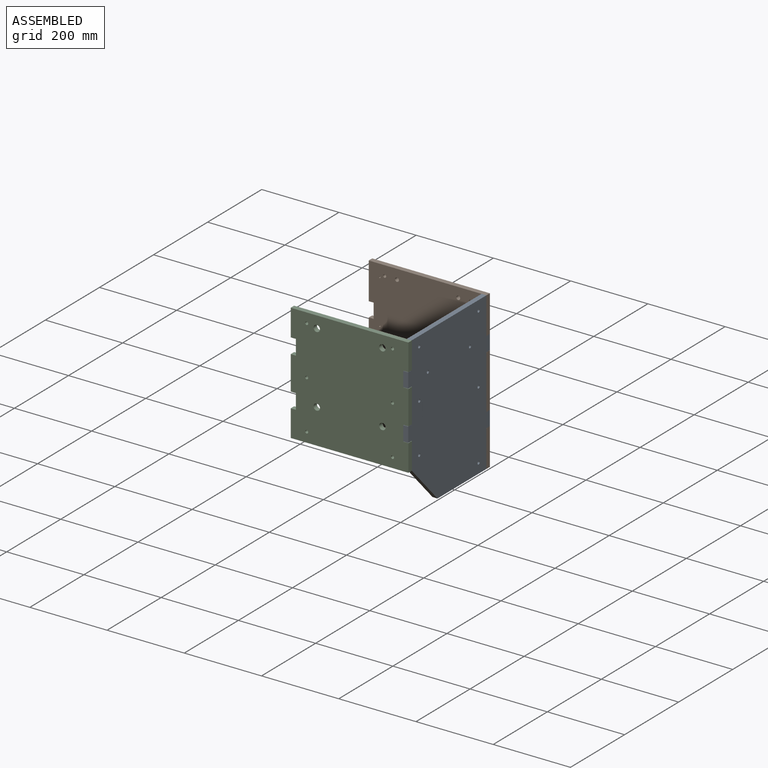
[diagram: assembled view]
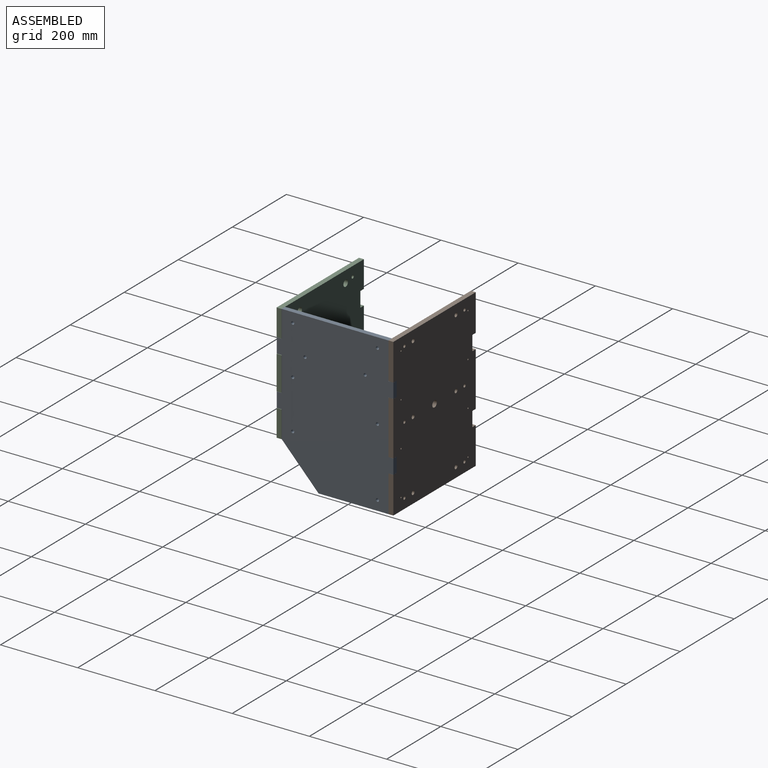
[diagram: assembled view, second angle]
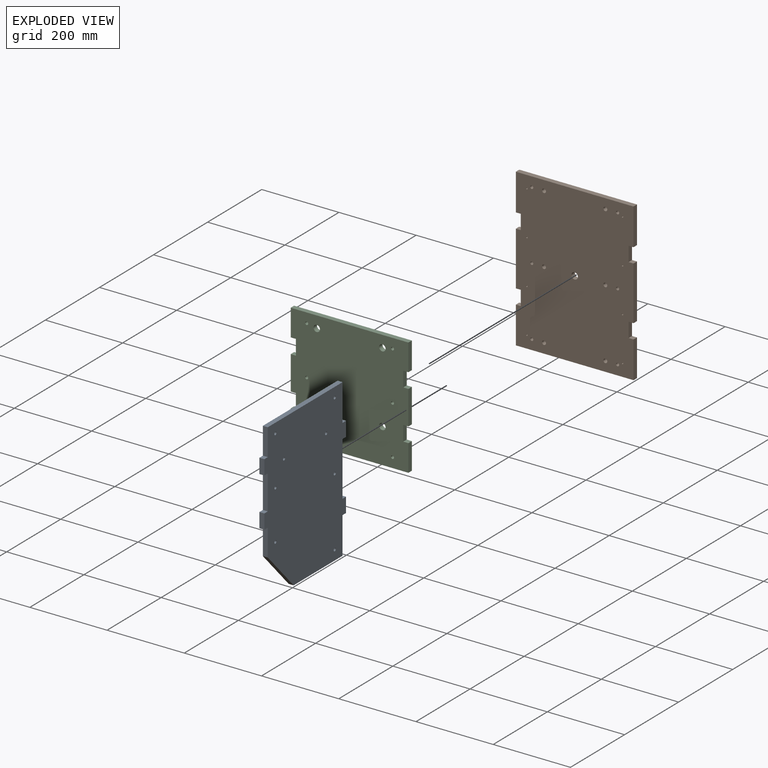
[diagram: exploded view]
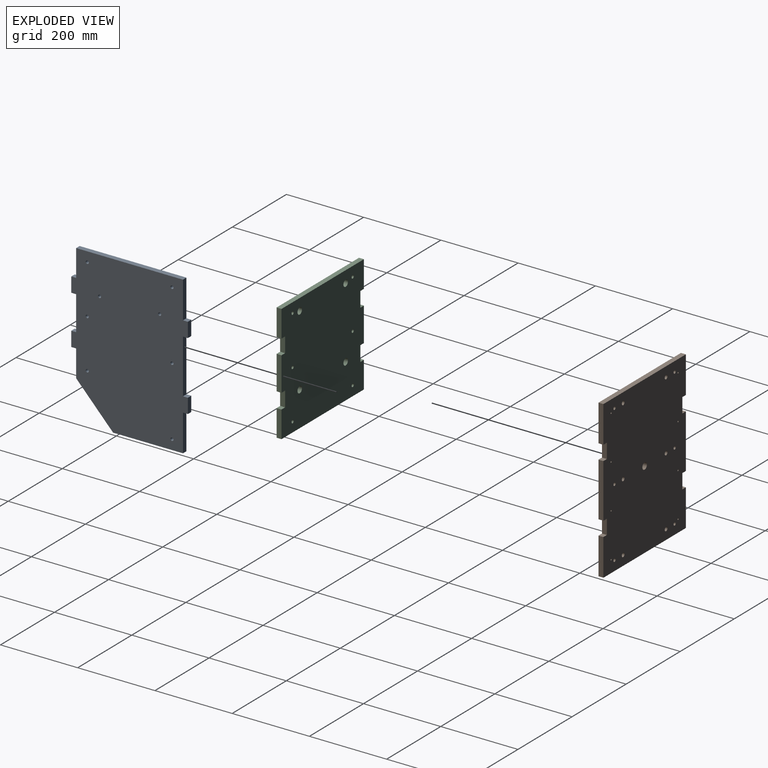
[diagram: exploded view, second angle]
ASSEMBLY  parts=3 mates=2
PART A: 31 faces, bbox 406.4x12.7x302 mm
  f0: plane 38.1x12.7mm, normal (0,0,1), area 483.9mm2, adj f1,f20,f21,f22
  f1: plane 12.7x12.7mm, normal (-1,0,0), area 161.3mm2, adj f0,f2,f21,f22
  f2: plane 95.25x12.7mm, normal (0,0,1), area 1209.7mm2, adj f1,f3,f21,f22
  f3: plane 180.98x12.7mm, normal (-1,0,0), area 2298.4mm2, adj f2,f4,f21,f22
  f4: plane 101.6x95.58mm, normal (-0.69,0,-0.73), area 1771.6mm2, adj f3,f5,f21,f22
  f5: plane 69.85x12.7mm, normal (0,0,-1), area 887.1mm2, adj f4,f6,f21,f22
  f6: plane 12.7x12.7mm, normal (-1,0,0), area 161.3mm2, adj f5,f7,f21,f22
  f7: plane 38.1x12.7mm, normal (0,0,-1), area 483.9mm2, adj f6,f8,f21,f22
  f8: plane 12.7x12.7mm, normal (1,0,0), area 161.3mm2, adj f7,f9,f21,f22
  f9: plane 88.9x12.7mm, normal (0,0,-1), area 1129mm2, adj f8,f10,f21,f22
  f10: plane 12.7x12.7mm, normal (-1,0,0), area 161.3mm2, adj f9,f11,f21,f22
  f11: plane 38.1x12.7mm, normal (0,0,-1), area 483.9mm2, adj f10,f12,f21,f22
  f12: plane 12.7x12.7mm, normal (1,0,0), area 161.3mm2, adj f11,f13,f21,f22
  f13: plane 69.85x12.7mm, normal (0,0,-1), area 887.1mm2, adj f12,f14,f21,f22
  f14: plane 276.56x12.7mm, normal (1,0,0), area 3512.3mm2, adj f13,f15,f21,f22
  f15: plane 95.25x12.7mm, normal (0,0,1), area 1209.7mm2, adj f14,f16,f21,f22
  f16: plane 12.7x12.7mm, normal (1,0,0), area 161.3mm2, adj f15,f17,f21,f22
  f17: plane 38.1x12.7mm, normal (0,0,1), area 483.9mm2, adj f16,f18,f21,f22
  f18: plane 12.7x12.7mm, normal (-1,0,0), area 161.3mm2, adj f17,f19,f21,f22
  f19: plane 139.7x12.7mm, normal (0,0,1), area 1774.2mm2, adj f18,f20,f21,f22
  f20: plane 12.7x12.7mm, normal (1,0,0), area 161.3mm2, adj f0,f19,f21,f22
  f21: plane 406.4x301.96mm, normal (0,-1,0), area 109076.2mm2, adj f0,f1,f2,f3,f4,f5,f6,f7
  f22: plane 406.4x301.96mm, normal (0,1,0), area 109076.2mm2, adj f0,f1,f2,f3,f4,f5,f6,f7
  f23: cylinder r=3.97mm len=12.7mm, axis (0,1,0), area 316.7mm2, adj f21,f22
  f24: cylinder r=3.97mm len=12.7mm, axis (0,1,0), area 316.7mm2, adj f21,f22
  f25: cylinder r=3.97mm len=12.7mm, axis (0,1,0), area 316.7mm2, adj f21,f22
  f26: cylinder r=3.97mm len=12.7mm, axis (0,1,0), area 316.7mm2, adj f21,f22
  f27: cylinder r=3.97mm len=12.7mm, axis (0,1,0), area 316.7mm2, adj f21,f22
  f28: cylinder r=3.97mm len=12.7mm, axis (0,1,0), area 316.7mm2, adj f21,f22
  f29: cylinder r=3.97mm len=12.7mm, axis (0,1,0), area 316.7mm2, adj f21,f22
  f30: cylinder r=3.97mm len=12.7mm, axis (0,1,0), area 316.7mm2, adj f21,f22
PART B: 43 faces, bbox 304.8x12.7x406.4 mm
  f0: plane 12.73x12.7mm, normal (0,0,1), area 161.6mm2, adj f1,f19,f20,f21
  f1: plane 95.2x12.7mm, normal (-1,0,0), area 1209mm2, adj f0,f2,f20,f21
  f2: plane 304.8x12.7mm, normal (0,0,-1), area 3871mm2, adj f1,f3,f20,f21
  f3: plane 95.2x12.7mm, normal (1,0,0), area 1209mm2, adj f2,f4,f20,f21
  f4: plane 12.73x12.7mm, normal (0,0,1), area 161.6mm2, adj f3,f5,f20,f21
  f5: plane 38.2x12.7mm, normal (1,0,0), area 485.2mm2, adj f4,f6,f20,f21
  f6: plane 12.73x12.7mm, normal (0,0,-1), area 161.6mm2, adj f5,f7,f20,f21
  f7: plane 139.6x12.7mm, normal (1,0,0), area 1772.9mm2, adj f6,f8,f20,f21
  f8: plane 12.73x12.7mm, normal (0,0,1), area 161.6mm2, adj f7,f9,f20,f21
  f9: plane 38.2x12.7mm, normal (1,0,0), area 485.2mm2, adj f8,f10,f20,f21
  f10: plane 12.73x12.7mm, normal (0,0,-1), area 161.6mm2, adj f9,f11,f20,f21
  f11: plane 95.2x12.7mm, normal (1,0,0), area 1209mm2, adj f10,f12,f20,f21
  f12: plane 304.8x12.7mm, normal (0,0,1), area 3871mm2, adj f11,f13,f20,f21
  f13: plane 95.2x12.7mm, normal (-1,0,0), area 1209mm2, adj f12,f14,f20,f21
  f14: plane 12.73x12.7mm, normal (0,0,-1), area 161.6mm2, adj f13,f15,f20,f21
  f15: plane 38.2x12.7mm, normal (-1,0,0), area 485.2mm2, adj f14,f16,f20,f21
  f16: plane 12.73x12.7mm, normal (0,0,1), area 161.6mm2, adj f15,f17,f20,f21
  f17: plane 139.6x12.7mm, normal (-1,0,0), area 1772.9mm2, adj f16,f18,f20,f21
  f18: plane 12.73x12.7mm, normal (0,0,-1), area 161.6mm2, adj f17,f19,f20,f21
  f19: plane 38.2x12.7mm, normal (-1,0,0), area 485.2mm2, adj f0,f18,f20,f21
  f20: plane 406.4x304.8mm, normal (0,-1,0), area 120841.3mm2, adj f0,f1,f2,f3,f4,f5,f6,f7
  f21: plane 406.4x304.8mm, normal (0,1,0), area 120841.3mm2, adj f0,f1,f2,f3,f4,f5,f6,f7
  f22: cylinder r=5.04mm len=12.7mm, axis (0,1,0), area 402.3mm2, adj f20,f21
  f23: cylinder r=5.04mm len=12.7mm, axis (0,1,0), area 402.3mm2, adj f20,f21
  f24: cylinder r=5.04mm len=12.7mm, axis (0,1,0), area 402.3mm2, adj f20,f21
  f25: cylinder r=5.04mm len=12.7mm, axis (0,1,0), area 402.3mm2, adj f20,f21
  f26: cylinder r=5.04mm len=12.7mm, axis (0,1,0), area 402.3mm2, adj f20,f21
  f27: cylinder r=5.04mm len=12.7mm, axis (0,1,0), area 402.3mm2, adj f20,f21
  f28: cylinder r=3.97mm len=12.7mm, axis (0,1,0), area 316.7mm2, adj f20,f21
  f29: cylinder r=3.97mm len=12.7mm, axis (0,1,0), area 316.7mm2, adj f20,f21
  f30: cylinder r=3.97mm len=12.7mm, axis (0,1,0), area 316.7mm2, adj f20,f21
  f31: cylinder r=3.97mm len=12.7mm, axis (0,1,0), area 316.7mm2, adj f20,f21
  f32: cylinder r=3.97mm len=12.7mm, axis (0,1,0), area 316.7mm2, adj f20,f21
  f33: cylinder r=3.97mm len=12.7mm, axis (0,1,0), area 316.7mm2, adj f20,f21
  f34: cylinder r=1.9mm len=12.7mm, axis (0,1,0), area 151.5mm2, adj f20,f21
  f35: cylinder r=1.9mm len=12.7mm, axis (0,1,0), area 151.5mm2, adj f20,f21
  f36: cylinder r=1.9mm len=12.7mm, axis (0,1,0), area 151.5mm2, adj f20,f21
  f37: cylinder r=1.9mm len=12.7mm, axis (0,1,0), area 151.5mm2, adj f20,f21
  f38: cylinder r=1.9mm len=12.7mm, axis (0,1,0), area 151.5mm2, adj f20,f21
  f39: cylinder r=1.9mm len=12.7mm, axis (0,1,0), area 151.5mm2, adj f20,f21
  f40: cylinder r=1.9mm len=12.7mm, axis (0,1,0), area 151.5mm2, adj f20,f21
  f41: cylinder r=1.9mm len=12.7mm, axis (0,1,0), area 151.5mm2, adj f20,f21
  f42: cylinder r=8.33mm len=16.67mm, axis (0,1,0), area 665mm2, adj f20,f21
PART C: 32 faces, bbox 304.8x12.7x304.8 mm
  f0: plane 69.34x12.7mm, normal (-1,0,0), area 880.6mm2, adj f1,f19,f20,f21
  f1: plane 13.26x12.7mm, normal (0,0,-1), area 168.4mm2, adj f0,f2,f20,f21
  f2: plane 39.22x12.7mm, normal (-1,0,0), area 498.1mm2, adj f1,f3,f20,f21
  f3: plane 13.26x12.7mm, normal (0,0,1), area 168.4mm2, adj f2,f4,f20,f21
  f4: plane 87.68x12.7mm, normal (-1,0,0), area 1113.5mm2, adj f3,f5,f20,f21
  f5: plane 13.26x12.7mm, normal (0,0,-1), area 168.4mm2, adj f4,f6,f20,f21
  f6: plane 39.22x12.7mm, normal (-1,0,0), area 498.1mm2, adj f5,f7,f20,f21
  f7: plane 13.26x12.7mm, normal (0,0,1), area 168.4mm2, adj f6,f8,f20,f21
  f8: plane 69.34x12.7mm, normal (-1,0,0), area 880.6mm2, adj f7,f9,f20,f21
  f9: plane 304.8x12.7mm, normal (0,0,-1), area 3871mm2, adj f8,f10,f20,f21
  f10: plane 69.34x12.7mm, normal (1,0,0), area 880.6mm2, adj f9,f11,f20,f21
  f11: plane 13.26x12.7mm, normal (0,0,1), area 168.4mm2, adj f10,f12,f20,f21
  f12: plane 39.22x12.7mm, normal (1,0,0), area 498.1mm2, adj f11,f13,f20,f21
  f13: plane 13.26x12.7mm, normal (0,0,-1), area 168.4mm2, adj f12,f14,f20,f21
  f14: plane 87.68x12.7mm, normal (1,0,0), area 1113.5mm2, adj f13,f15,f20,f21
  f15: plane 13.26x12.7mm, normal (0,0,1), area 168.4mm2, adj f14,f16,f20,f21
  f16: plane 39.22x12.7mm, normal (1,0,0), area 498.1mm2, adj f15,f17,f20,f21
  f17: plane 13.26x12.7mm, normal (0,0,-1), area 168.4mm2, adj f16,f18,f20,f21
  f18: plane 69.34x12.7mm, normal (1,0,0), area 880.6mm2, adj f17,f19,f20,f21
  f19: plane 304.8x12.7mm, normal (0,0,1), area 3871mm2, adj f0,f18,f20,f21
  f20: plane 304.8x304.8mm, normal (0,-1,0), area 89653.5mm2, adj f0,f1,f2,f3,f4,f5,f6,f7
  f21: plane 304.8x304.8mm, normal (0,1,0), area 89653.5mm2, adj f0,f1,f2,f3,f4,f5,f6,f7
  f22: cylinder r=8.33mm len=16.67mm, axis (0,1,0), area 665mm2, adj f20,f21
  f23: cylinder r=8.33mm len=16.67mm, axis (0,1,0), area 665mm2, adj f20,f21
  f24: cylinder r=8.33mm len=16.67mm, axis (0,1,0), area 665mm2, adj f20,f21
  f25: cylinder r=8.33mm len=16.67mm, axis (0,1,0), area 665mm2, adj f20,f21
  f26: cylinder r=3.97mm len=12.7mm, axis (0,1,0), area 316.7mm2, adj f20,f21
  f27: cylinder r=3.97mm len=12.7mm, axis (0,1,0), area 316.7mm2, adj f20,f21
  f28: cylinder r=3.97mm len=12.7mm, axis (0,1,0), area 316.7mm2, adj f20,f21
  f29: cylinder r=3.97mm len=12.7mm, axis (0,1,0), area 316.7mm2, adj f20,f21
  f30: cylinder r=3.97mm len=12.7mm, axis (0,1,0), area 316.7mm2, adj f20,f21
  f31: cylinder r=3.97mm len=12.7mm, axis (0,1,0), area 316.7mm2, adj f20,f21
PLACE A rot(axis=(-0.58,-0.58,-0.58),120deg) t=(206.02,-367.76,29.45)mm
PLACE B t=(-98.75,-78.51,29.45)mm
PLACE C t=(206.58,-367.76,-275.29)mm
MATE fastened C.f16 <-> A.f21  axis (1,0,0) through (193.32,-380.46,-59.45)mm
MATE fastened A.f17 <-> B.f21  axis (0,1,0) through (193.32,-78.51,-84.85)mm
